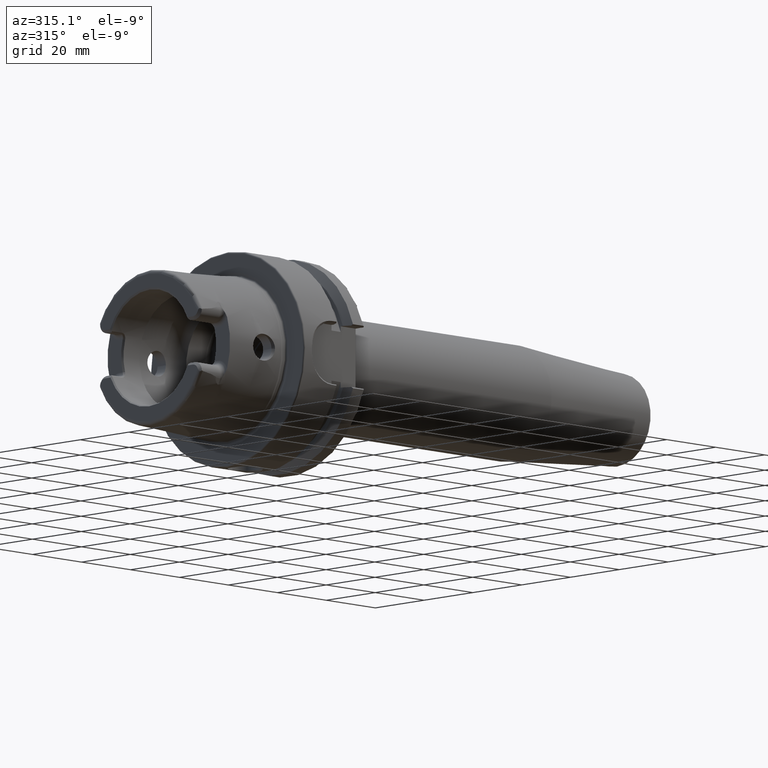
[diagram: clean part render]
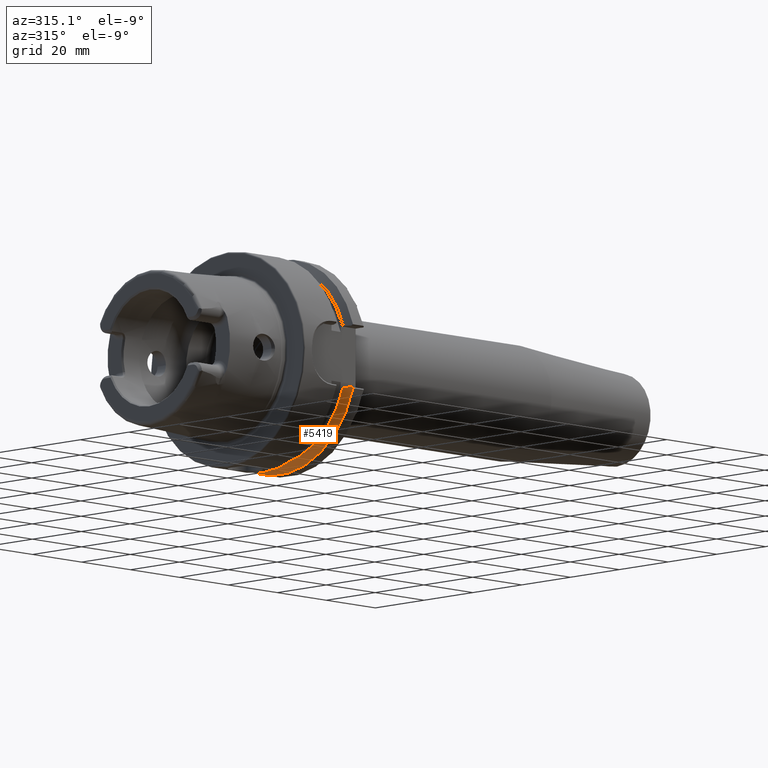
[diagram: same view with one face highlighted and labeled with its STEP entity id]
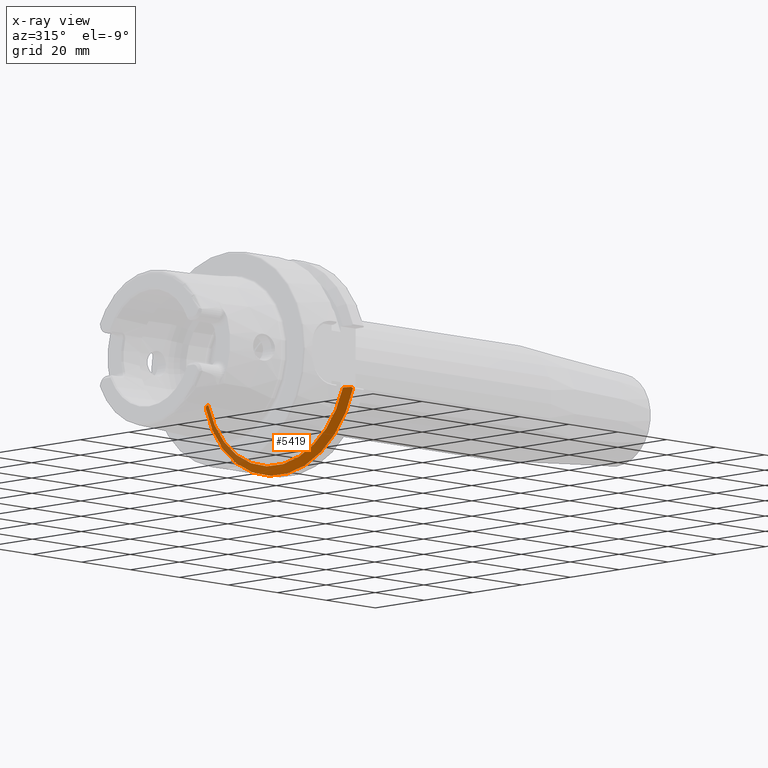
[diagram: x-ray of the same camera — body ghosted, the highlighted face saturated]
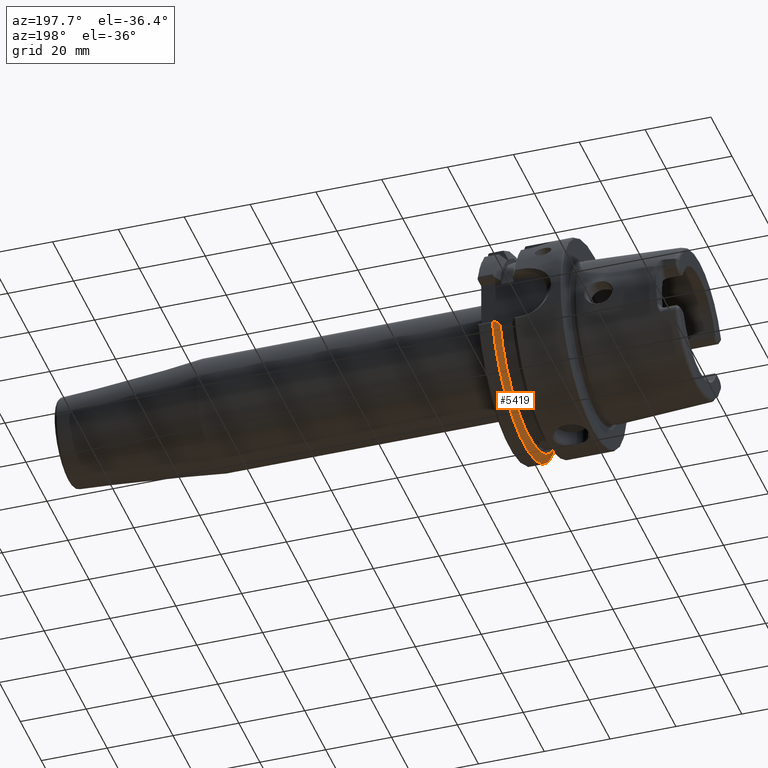
[diagram: same view with one face highlighted and labeled with its STEP entity id]
A machine part, auxiliary view. The second image highlights one B-rep face of the part: STEP entity #5419.
The next image is the same camera in x-ray: the body ghosted, the highlighted face saturated — about 20% of this face is hidden behind the body in this view.
A second angle (auxiliary view) of the same face is appended — the face is thin or edge-on in the first view.
In plain terms, the highlighted conical surface has half-angle 60 deg.
Its self-contained STEP definition (entity closure, byte-faithful):
#2190=CARTESIAN_POINT('',(2.137749905409E1,3.030257052423E1,-8.602570524226E0));
#2191=CARTESIAN_POINT('',(2.132921046999E1,3.023485181706E1,-8.534851817061E0));
#2192=CARTESIAN_POINT('',(2.123311736136E1,3.009992541679E1,-8.399925416791E0));
#2193=CARTESIAN_POINT('',(2.109043172139E1,2.989907088202E1,-8.199070882020E0));
#2194=CARTESIAN_POINT('',(2.099627445276E1,2.976618689262E1,-8.066186892616E0));
#2195=CARTESIAN_POINT('',(2.094943773112E1,2.97E1,-8.E0));
#2197=CARTESIAN_POINT('',(1.9875E1,2.776816547996E1,-8.E0));
#2198=CARTESIAN_POINT('',(1.999165415311E1,2.797843452791E1,-8.E0));
#2199=CARTESIAN_POINT('',(2.022678408776E1,2.840189003059E1,-8.E0));
#2200=CARTESIAN_POINT('',(2.058492130902E1,2.904580805273E1,-8.E0));
#2201=CARTESIAN_POINT('',(2.082732680308E1,2.948095924086E1,-8.E0));
#2202=CARTESIAN_POINT('',(2.094943773112E1,2.97E1,-8.E0));
#2204=CARTESIAN_POINT('',(1.9875E1,0.E0,0.E0));
#2205=DIRECTION('',(-1.E0,0.E0,0.E0));
#2206=DIRECTION('',(0.E0,9.609161313143E-1,-2.768396441624E-1));
#2207=AXIS2_PLACEMENT_3D('',#2204,#2205,#2206);
#2209=CARTESIAN_POINT('',(2.110827564058E1,-2.97E1,-9.E0));
#2210=CARTESIAN_POINT('',(2.096740886767E1,-2.944505518705E1,-9.E0));
#2211=CARTESIAN_POINT('',(2.068822774339E1,-2.893923282223E1,-9.E0));
#2212=CARTESIAN_POINT('',(2.027716456988E1,-2.819275590811E1,-9.E0));
#2213=CARTESIAN_POINT('',(2.000820237647E1,-2.770314203488E1,-9.E0));
#2214=CARTESIAN_POINT('',(1.9875E1,-2.746035349595E1,-9.E0));
#2216=CARTESIAN_POINT('',(2.110827564058E1,-2.97E1,-9.E0));
#2217=CARTESIAN_POINT('',(2.115274337122E1,-2.976176295487E1,
-9.061762954871E0));
#2218=CARTESIAN_POINT('',(2.124208175331E1,-2.988571693019E1,
-9.185716930188E0));
#2219=CARTESIAN_POINT('',(2.133222573231E1,-3.001052712454E1,
-9.310527124541E0));
#2220=CARTESIAN_POINT('',(2.137749905409E1,-3.007314630073E1,
-9.373146300730E0));
#2222=CARTESIAN_POINT('',(2.137749905409E1,0.E0,0.E0));
#2223=DIRECTION('',(1.E0,0.E0,0.E0));
#2224=DIRECTION('',(0.E0,-9.547030571660E-1,-2.975602000232E-1));
#2225=AXIS2_PLACEMENT_3D('',#2222,#2223,#2224);
#2617=CARTESIAN_POINT('',(1.9875E1,2.776816547996E1,-8.E0));
#2618=VERTEX_POINT('',#2617);
#2649=CARTESIAN_POINT('',(1.9875E1,-2.746035349595E1,-9.E0));
#2650=VERTEX_POINT('',#2649);
#2869=VERTEX_POINT('',#2216);
#2870=VERTEX_POINT('',#2220);
#2892=VERTEX_POINT('',#2190);
#2893=VERTEX_POINT('',#2195);
#5404=CARTESIAN_POINT('',(2.062624952704E1,0.E0,0.E0));
#5405=DIRECTION('',(1.E0,0.E0,0.E0));
#5406=DIRECTION('',(0.E0,0.E0,1.E0));
#5407=AXIS2_PLACEMENT_3D('',#5404,#5405,#5406);
#5408=CONICAL_SURFACE('',#5407,3.019879765E1,6.E1);
#5409=ORIENTED_EDGE('',*,*,#3893,.T.);
#5411=ORIENTED_EDGE('',*,*,#5410,.F.);
#5413=ORIENTED_EDGE('',*,*,#5412,.T.);
#5414=ORIENTED_EDGE('',*,*,#5363,.F.);
#5415=ORIENTED_EDGE('',*,*,#5336,.T.);
#5416=ORIENTED_EDGE('',*,*,#3797,.T.);
#5417=EDGE_LOOP('',(#5409,#5411,#5413,#5414,#5415,#5416));
#5418=FACE_OUTER_BOUND('',#5417,.F.);
#5419=ADVANCED_FACE('',(#5418),#5408,.T.);
#2196=B_SPLINE_CURVE_WITH_KNOTS('',3,(#2190,#2191,#2192,#2193,#2194,#2195),
.UNSPECIFIED.,.F.,.F.,(4,1,1,4),(0.E0,3.333333333333E-1,6.666666666667E-1,1.E0),
.UNSPECIFIED.);
#2203=B_SPLINE_CURVE_WITH_KNOTS('',3,(#2197,#2198,#2199,#2200,#2201,#2202),
.UNSPECIFIED.,.F.,.F.,(4,1,1,4),(0.E0,3.333333333333E-1,6.666666666667E-1,1.E0),
.UNSPECIFIED.);
#2208=CIRCLE('',#2207,2.88975953E1);
#2215=B_SPLINE_CURVE_WITH_KNOTS('',3,(#2209,#2210,#2211,#2212,#2213,#2214),
.UNSPECIFIED.,.F.,.F.,(4,1,1,4),(0.E0,3.333333333333E-1,6.666666666667E-1,1.E0),
.UNSPECIFIED.);
#2221=B_SPLINE_CURVE_WITH_KNOTS('',3,(#2216,#2217,#2218,#2219,#2220),
.UNSPECIFIED.,.F.,.F.,(4,1,4),(0.E0,5.E-1,1.E0),.UNSPECIFIED.);
#2226=CIRCLE('',#2225,3.15E1);
#3797=EDGE_CURVE('',#2870,#2892,#2226,.T.);
#3893=EDGE_CURVE('',#2892,#2893,#2196,.T.);
#5336=EDGE_CURVE('',#2869,#2870,#2221,.T.);
#5363=EDGE_CURVE('',#2869,#2650,#2215,.T.);
#5410=EDGE_CURVE('',#2618,#2893,#2203,.T.);
#5412=EDGE_CURVE('',#2618,#2650,#2208,.T.);